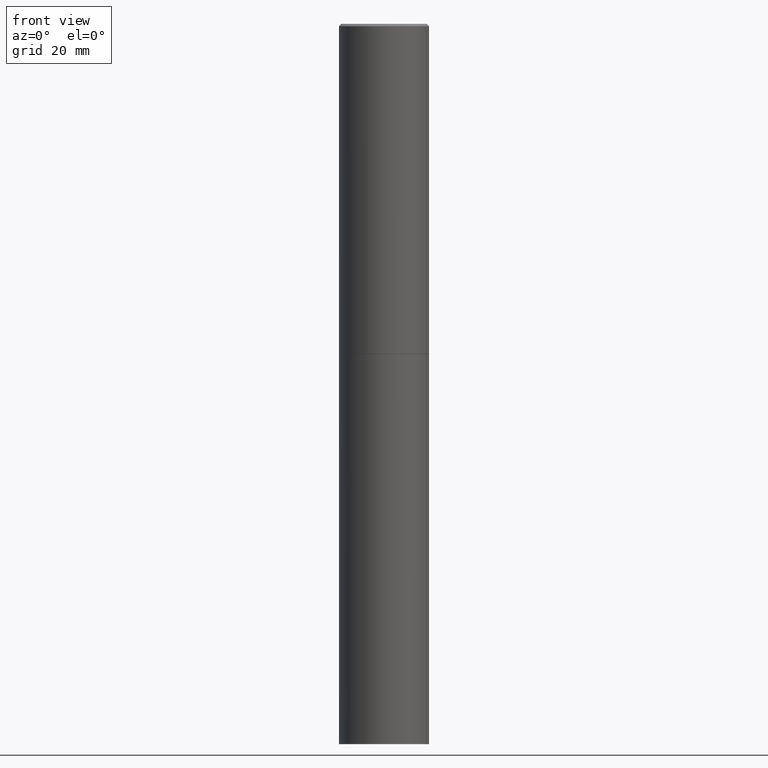
[diagram: clean part render]
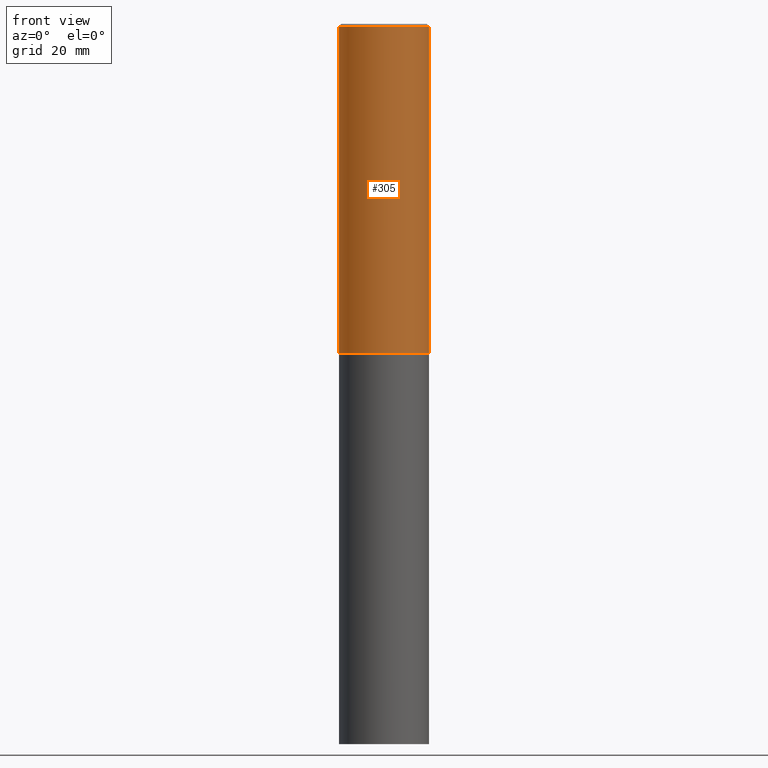
[diagram: same view with one face highlighted and labeled with its STEP entity id]
A machine part, front view. The second image highlights one B-rep face of the part: STEP entity #305.
In plain terms, the highlighted cylindrical surface (partial cylindrical patch) has radius 9.525 mm, axis along (-0, 0, 1).
Its self-contained STEP definition (entity closure, byte-faithful):
#8 = ORIENTED_EDGE ( 'NONE', *, *, #11, .F. ) ;
#11 = EDGE_CURVE ( 'NONE', #146, #136, #348, .T. ) ;
#19 = CARTESIAN_POINT ( 'NONE',  ( 6.722593748202942280E-29, -9.598082200479810007E-15, -2.749000000000000554 ) ) ;
#39 = CARTESIAN_POINT ( 'NONE',  ( -0.3749999999999998890, 2.664535259100374908E-15, -1.844600658845589038E-29 ) ) ;
#49 = LINE ( 'NONE', #82, #92 ) ;
#50 = DIRECTION ( 'NONE',  ( -2.445468806185136877E-29, 3.491481338843145188E-15, 1.000000000000000000 ) ) ;
#54 = AXIS2_PLACEMENT_3D ( 'NONE', #19, #356, #214 ) ;
#61 = VERTEX_POINT ( 'NONE', #265 ) ;
#65 = AXIS2_PLACEMENT_3D ( 'NONE', #206, #69, #213 ) ;
#68 = DIRECTION ( 'NONE',  ( 1.000000000000000000, -6.982962677686265922E-15, 0.000000000000000000 ) ) ;
#69 = DIRECTION ( 'NONE',  ( -2.445468806185136597E-29, 3.491481338843145583E-15, 1.000000000000000000 ) ) ;
#79 = EDGE_LOOP ( 'NONE', ( #354, #179, #321, #8 ) ) ;
#82 = CARTESIAN_POINT ( 'NONE',  ( 0.3749999999999998890, -2.618611004132349228E-15, 1.828566290923475362E-29 ) ) ;
#92 = VECTOR ( 'NONE', #50, 39.37007874015748143 ) ;
#97 = DIRECTION ( 'NONE',  ( -2.445468806185136597E-29, 3.491481338843145583E-15, 1.000000000000000000 ) ) ;
#98 = CARTESIAN_POINT ( 'NONE',  ( 0.3750000000000000555, -1.221669320461216002E-14, -2.749000000000000554 ) ) ;
#128 = CARTESIAN_POINT ( 'NONE',  ( -0.3749999999999997780, 2.548781377355484746E-15, -0.02000000000000008021 ) ) ;
#136 = VERTEX_POINT ( 'NONE', #191 ) ;
#139 = VECTOR ( 'NONE', #358, 39.37007874015748143 ) ;
#140 = EDGE_CURVE ( 'NONE', #259, #136, #49, .T. ) ;
#146 = VERTEX_POINT ( 'NONE', #128 ) ;
#151 = CYLINDRICAL_SURFACE ( 'NONE', #65, 0.3749999999999998890 ) ;
#152 = CARTESIAN_POINT ( 'NONE',  ( 4.890937612370293302E-31, -6.982962677686318726E-17, -0.02000000000000008021 ) ) ;
#163 = EDGE_CURVE ( 'NONE', #61, #259, #364, .T. ) ;
#179 = ORIENTED_EDGE ( 'NONE', *, *, #163, .T. ) ;
#191 = CARTESIAN_POINT ( 'NONE',  ( 0.3749999999999997780, -2.642516375941186056E-15, -0.02000000000000008021 ) ) ;
#197 = AXIS2_PLACEMENT_3D ( 'NONE', #152, #97, #68 ) ;
#206 = CARTESIAN_POINT ( 'NONE',  ( 0.000000000000000000, 0.000000000000000000, 0.000000000000000000 ) ) ;
#213 = DIRECTION ( 'NONE',  ( 1.000000000000000000, -6.982962677686266711E-15, 4.876176775795935793E-29 ) ) ;
#214 = DIRECTION ( 'NONE',  ( 1.000000000000000000, -6.982962677686266711E-15, 0.000000000000000000 ) ) ;
#259 = VERTEX_POINT ( 'NONE', #98 ) ;
#260 = EDGE_CURVE ( 'NONE', #61, #146, #360, .T. ) ;
#265 = CARTESIAN_POINT ( 'NONE',  ( -0.3750000000000000555, -2.169420654527958195E-15, -2.749000000000000554 ) ) ;
#294 = FACE_OUTER_BOUND ( 'NONE', #79, .T. ) ;
#305 = ADVANCED_FACE ( 'NONE', ( #294 ), #151, .T. ) ;
#321 = ORIENTED_EDGE ( 'NONE', *, *, #140, .T. ) ;
#348 = CIRCLE ( 'NONE', #197, 0.3749999999999997780 ) ;
#354 = ORIENTED_EDGE ( 'NONE', *, *, #260, .F. ) ;
#356 = DIRECTION ( 'NONE',  ( -2.445468806185136597E-29, 3.491481338843145583E-15, 1.000000000000000000 ) ) ;
#358 = DIRECTION ( 'NONE',  ( -2.445468806185136877E-29, 3.491481338843145188E-15, 1.000000000000000000 ) ) ;
#360 = LINE ( 'NONE', #39, #139 ) ;
#364 = CIRCLE ( 'NONE', #54, 0.3750000000000000555 ) ;